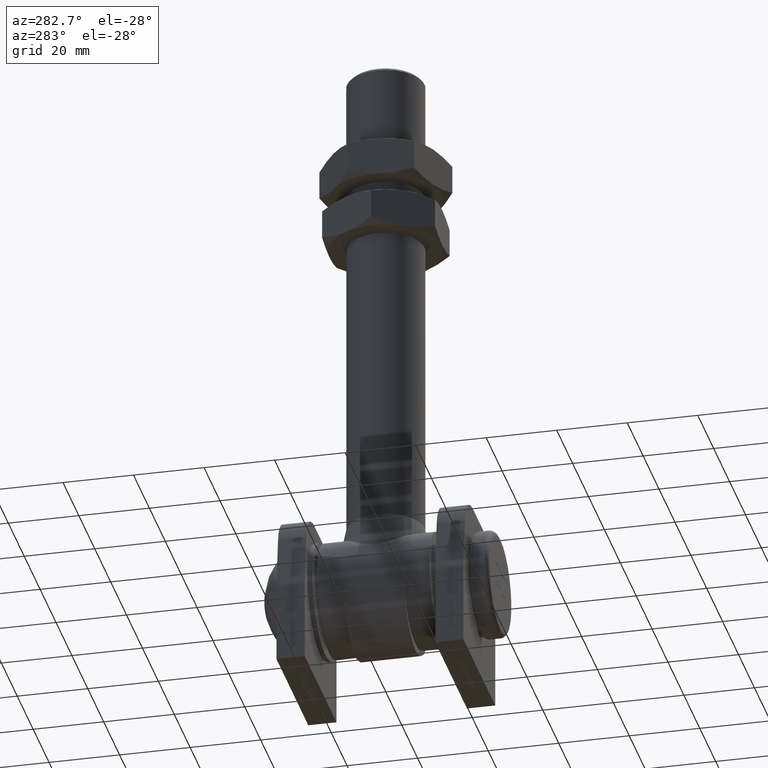
[diagram: clean part render]
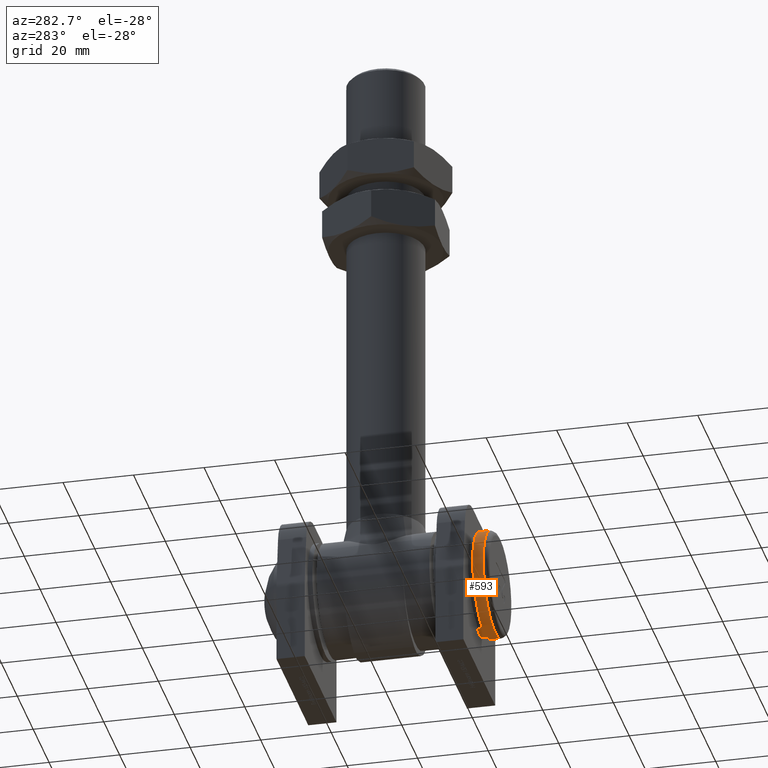
[diagram: same view with one face highlighted and labeled with its STEP entity id]
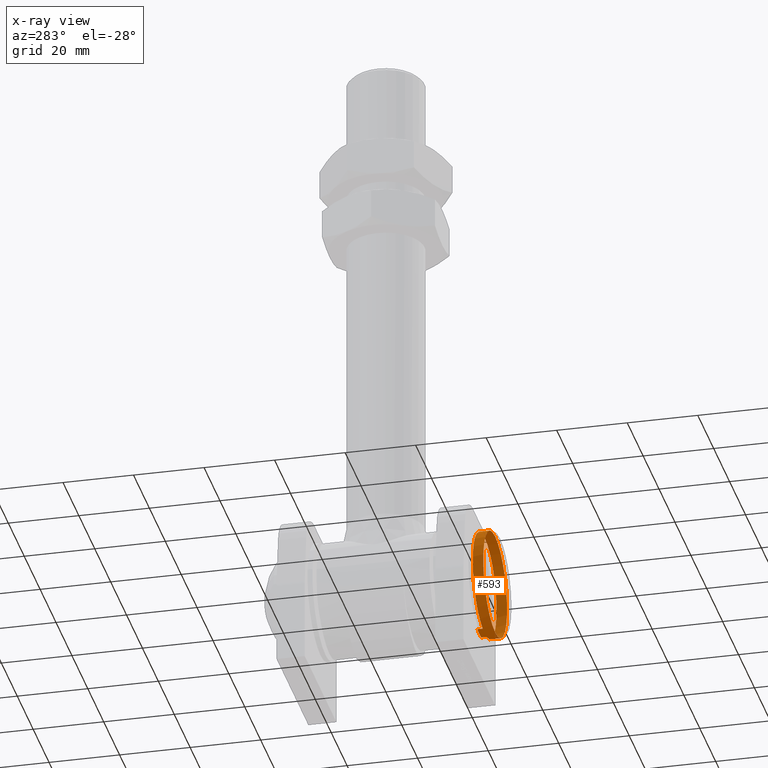
[diagram: x-ray of the same camera — body ghosted, the highlighted face saturated]
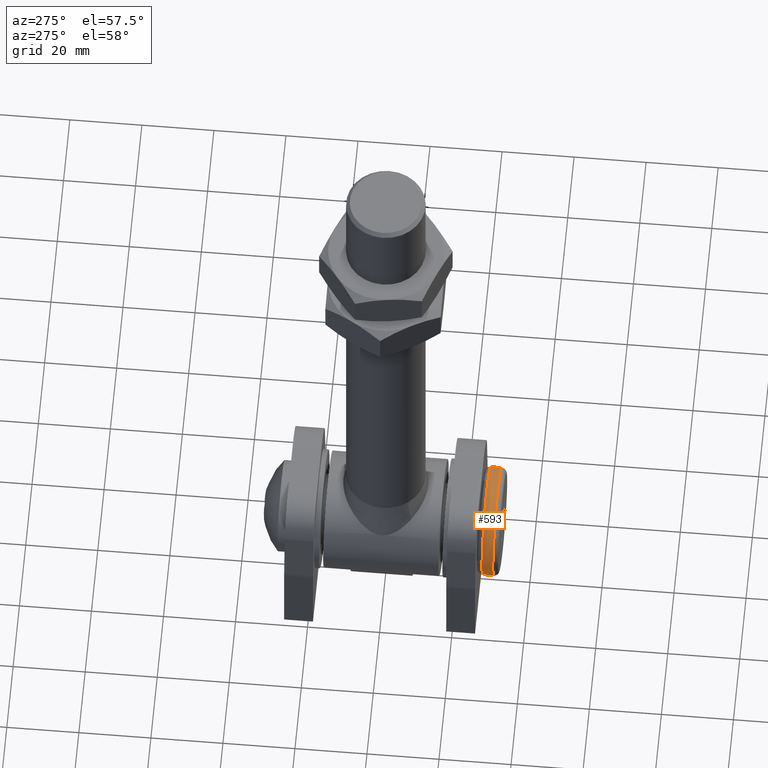
[diagram: same view with one face highlighted and labeled with its STEP entity id]
A machine part, auxiliary view. The second image highlights one B-rep face of the part: STEP entity #593.
The next image is the same camera in x-ray: the body ghosted, the highlighted face saturated — about 1% of this face is hidden behind the body in this view.
A second angle (auxiliary view) of the same face is appended — the face is thin or edge-on in the first view.
In plain terms, the highlighted cylindrical surface (bore or boss wall) has radius 15 mm, axis along (0, 1, 0).
Its self-contained STEP definition (entity closure, byte-faithful):
#29 = ORIENTED_EDGE ( 'NONE', *, *, #7833, .T. ) ;
#40 = CIRCLE ( 'NONE', #1434, 15.00000000000000000 ) ;
#465 = LINE ( 'NONE', #9443, #14335 ) ;
#593 = ADVANCED_FACE ( 'NONE', ( #8241, #884 ), #8631, .T. ) ;
#784 = DIRECTION ( 'NONE',  ( 0.000000000000000000, 0.000000000000000000, 1.000000000000000000 ) ) ;
#884 = FACE_OUTER_BOUND ( 'NONE', #10837, .T. ) ;
#1144 = CARTESIAN_POINT ( 'NONE',  ( 0.000000000000000000, 5.999999999999991118, 0.000000000000000000 ) ) ;
#1434 = AXIS2_PLACEMENT_3D ( 'NONE', #9865, #7664, #4265 ) ;
#1486 = CIRCLE ( 'NONE', #8472, 15.00000000000000000 ) ;
#3271 = CARTESIAN_POINT ( 'NONE',  ( -2.500000000000006661, 5.999999999999998224, 14.79019945774903633 ) ) ;
#3634 = EDGE_CURVE ( 'NONE', #13247, #13247, #13115, .T. ) ;
#3636 = DIRECTION ( 'NONE',  ( -0.000000000000000000, 1.000000000000000000, -0.000000000000000000 ) ) ;
#3777 = DIRECTION ( 'NONE',  ( -0.000000000000000000, 1.000000000000000000, -0.000000000000000000 ) ) ;
#4265 = DIRECTION ( 'NONE',  ( 0.000000000000000000, 0.000000000000000000, -1.000000000000000000 ) ) ;
#4315 = DIRECTION ( 'NONE',  ( -0.000000000000000000, 1.000000000000000000, -0.000000000000000000 ) ) ;
#4408 = VERTEX_POINT ( 'NONE', #11661 ) ;
#4721 = VERTEX_POINT ( 'NONE', #13732 ) ;
#5796 = DIRECTION ( 'NONE',  ( 0.000000000000000000, -1.000000000000000000, 0.000000000000000000 ) ) ;
#6471 = CARTESIAN_POINT ( 'NONE',  ( 0.000000000000000000, 54.74999999999999289, 0.000000000000000000 ) ) ;
#6978 = EDGE_CURVE ( 'NONE', #4408, #14275, #1486, .T. ) ;
#7359 = VECTOR ( 'NONE', #5796, 1000.000000000000000 ) ;
#7664 = DIRECTION ( 'NONE',  ( 0.000000000000000000, -1.000000000000000000, 0.000000000000000000 ) ) ;
#7833 = EDGE_CURVE ( 'NONE', #4721, #9148, #40, .T. ) ;
#7981 = DIRECTION ( 'NONE',  ( 0.000000000000000000, 0.000000000000000000, 1.000000000000000000 ) ) ;
#8031 = DIRECTION ( 'NONE',  ( -0.000000000000000000, -1.000000000000000000, -0.000000000000000000 ) ) ;
#8211 = ORIENTED_EDGE ( 'NONE', *, *, #6978, .T. ) ;
#8220 = CARTESIAN_POINT ( 'NONE',  ( 2.500000000000000000, 4.500000000000003553, 14.79019945774903988 ) ) ;
#8241 = FACE_OUTER_BOUND ( 'NONE', #9777, .T. ) ;
#8472 = AXIS2_PLACEMENT_3D ( 'NONE', #1144, #8031, #7981 ) ;
#8631 = CYLINDRICAL_SURFACE ( 'NONE', #13179, 15.00000000000000000 ) ;
#9148 = VERTEX_POINT ( 'NONE', #8220 ) ;
#9443 = CARTESIAN_POINT ( 'NONE',  ( 2.500000000000000000, 4.500000000000003553, 14.79019945774903988 ) ) ;
#9777 = EDGE_LOOP ( 'NONE', ( #13682 ) ) ;
#9865 = CARTESIAN_POINT ( 'NONE',  ( 0.000000000000000000, 4.500000000000003553, 0.000000000000000000 ) ) ;
#10079 = EDGE_CURVE ( 'NONE', #14275, #4721, #14005, .T. ) ;
#10667 = CARTESIAN_POINT ( 'NONE',  ( 0.000000000000000000, 1.500000000000001332, 0.000000000000000000 ) ) ;
#10837 = EDGE_LOOP ( 'NONE', ( #8211, #13243, #29, #11041 ) ) ;
#11041 = ORIENTED_EDGE ( 'NONE', *, *, #13208, .T. ) ;
#11390 = CARTESIAN_POINT ( 'NONE',  ( 0.000000000000000000, 1.500000000000001332, 15.00000000000000000 ) ) ;
#11661 = CARTESIAN_POINT ( 'NONE',  ( 2.500000000000006661, 5.999999999999998224, 14.79019945774903633 ) ) ;
#11691 = DIRECTION ( 'NONE',  ( 0.000000000000000000, 0.000000000000000000, 1.000000000000000000 ) ) ;
#12749 = CARTESIAN_POINT ( 'NONE',  ( -2.500000000000006661, 5.999999999999998224, 14.79019945774903633 ) ) ;
#13115 = CIRCLE ( 'NONE', #13839, 15.00000000000000000 ) ;
#13179 = AXIS2_PLACEMENT_3D ( 'NONE', #6471, #4315, #784 ) ;
#13208 = EDGE_CURVE ( 'NONE', #9148, #4408, #465, .T. ) ;
#13243 = ORIENTED_EDGE ( 'NONE', *, *, #10079, .T. ) ;
#13247 = VERTEX_POINT ( 'NONE', #11390 ) ;
#13682 = ORIENTED_EDGE ( 'NONE', *, *, #3634, .T. ) ;
#13732 = CARTESIAN_POINT ( 'NONE',  ( -2.500000000000000000, 4.500000000000003553, 14.79019945774903988 ) ) ;
#13839 = AXIS2_PLACEMENT_3D ( 'NONE', #10667, #3777, #11691 ) ;
#14005 = LINE ( 'NONE', #12749, #7359 ) ;
#14275 = VERTEX_POINT ( 'NONE', #3271 ) ;
#14335 = VECTOR ( 'NONE', #3636, 1000.000000000000000 ) ;